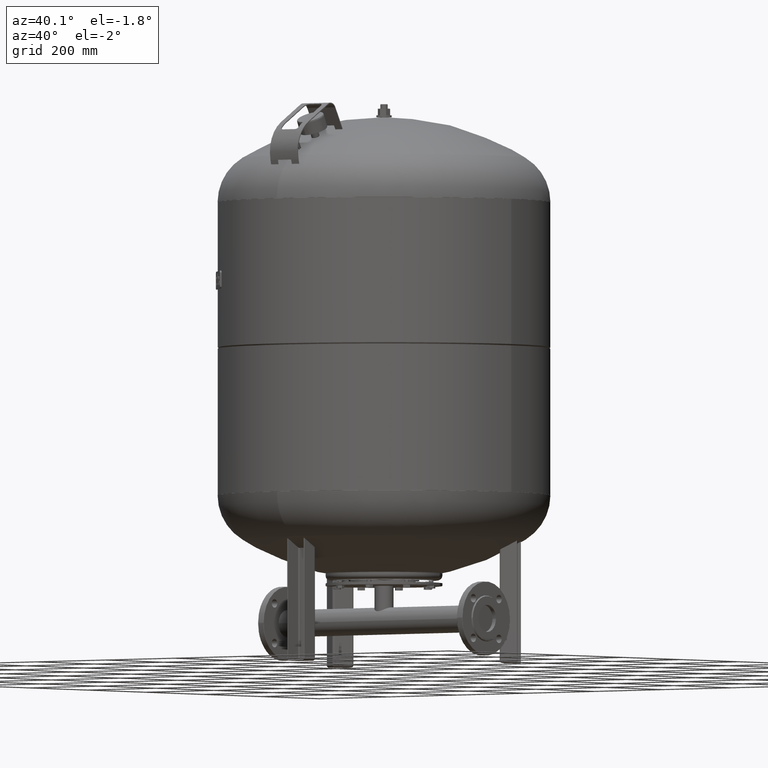
[diagram: clean part render]
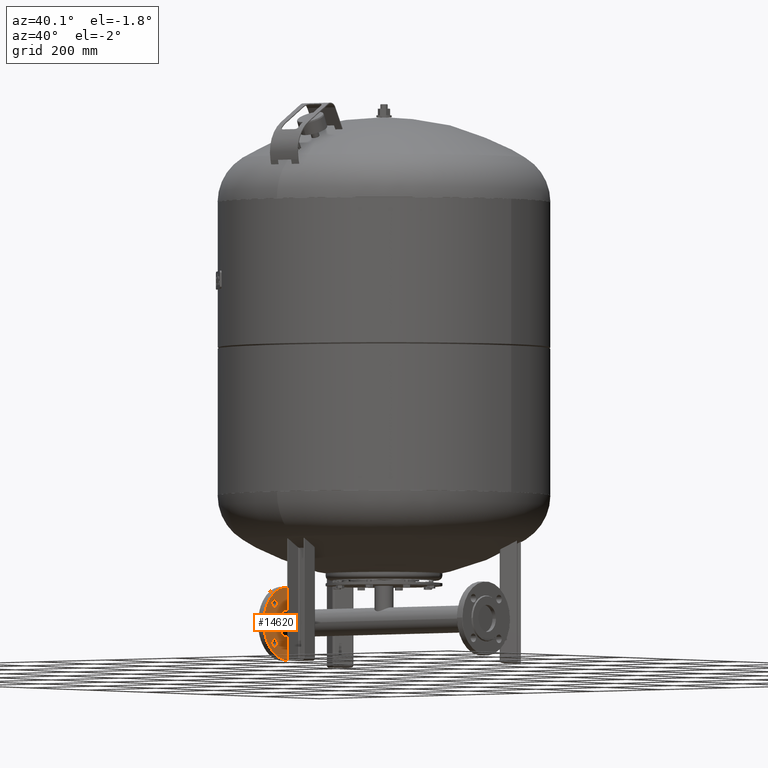
[diagram: same view with one face highlighted and labeled with its STEP entity id]
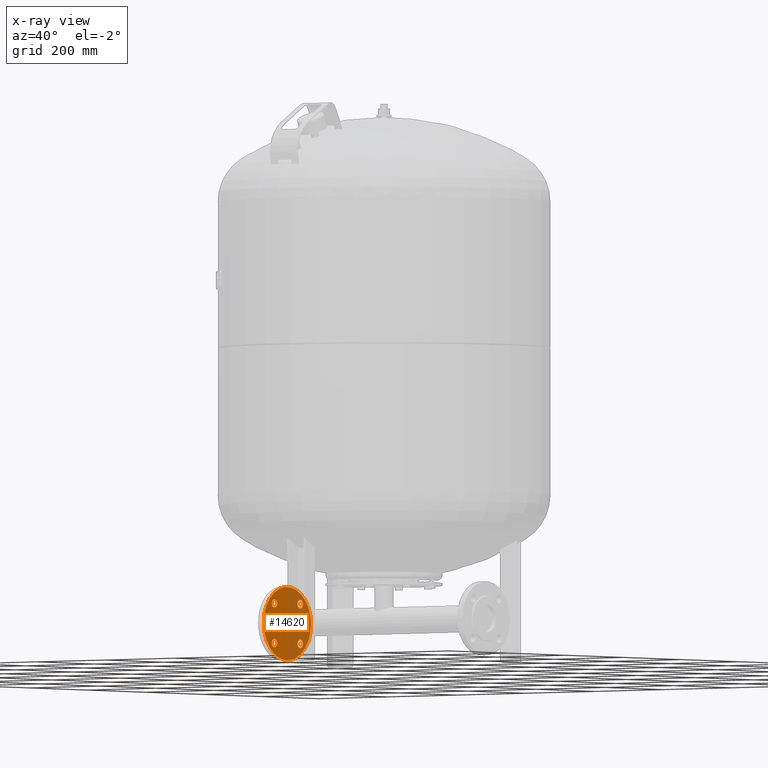
[diagram: x-ray of the same camera — body ghosted, the highlighted face saturated]
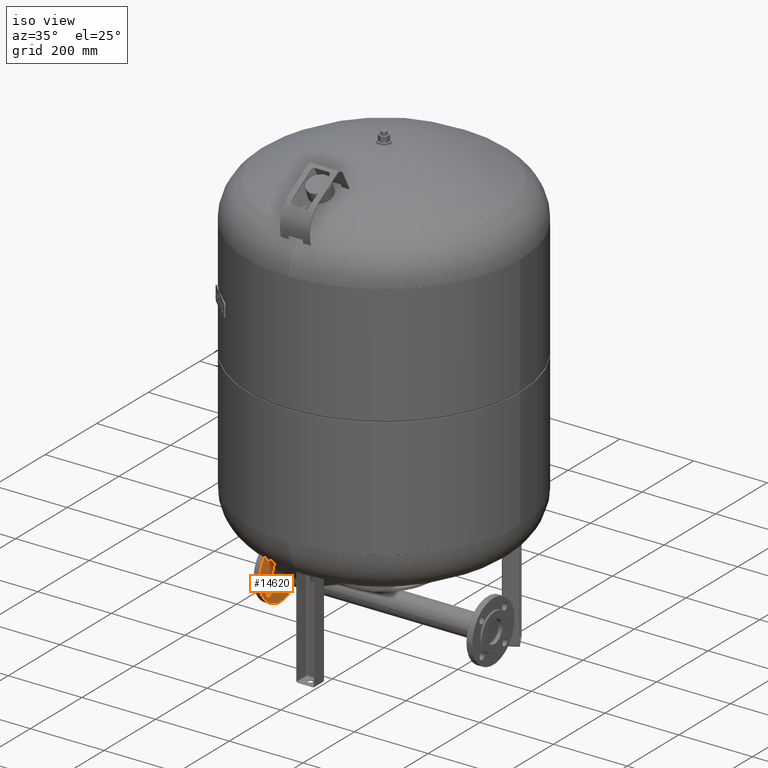
[diagram: same view with one face highlighted and labeled with its STEP entity id]
A machine part, auxiliary view. The second image highlights one B-rep face of the part: STEP entity #14620.
The next image is the same camera in x-ray: the body ghosted, the highlighted face saturated — about 50% of this face is hidden behind the body in this view.
A second angle (iso view) of the same face is appended — the face is thin or edge-on in the first view.
In plain terms, the highlighted face is a freeform B-spline surface patch.
Its self-contained STEP definition (entity closure, byte-faithful):
#13991=CARTESIAN_POINT('',(-281.0,-53.694173824159122,139.194173824159320));
#13992=VERTEX_POINT('',#13991);
#14001=CARTESIAN_POINT('',(-281.0,-34.694173824159122,139.194173824159320));
#14002=VERTEX_POINT('',#14001);
#14003=CARTESIAN_POINT('',(-281.0,-44.194173824159122,139.194173824159320));
#14004=DIRECTION('',(1.0,0.0,0.0));
#14005=DIRECTION('',(0.0,-1.0,0.0));
#14006=AXIS2_PLACEMENT_3D('',#14003,#14004,#14005);
#14007=CIRCLE('',#14006,9.500000000000000);
#14008=EDGE_CURVE('',#13992,#14002,#14007,.T.);
#14054=CARTESIAN_POINT('',(-281.0,-53.694173824159272,50.805826175840828));
#14055=VERTEX_POINT('',#14054);
#14064=CARTESIAN_POINT('',(-281.0,-34.694173824159272,50.805826175840828));
#14065=VERTEX_POINT('',#14064);
#14066=CARTESIAN_POINT('',(-281.0,-44.194173824159272,50.805826175840828));
#14067=DIRECTION('',(1.0,0.0,0.0));
#14068=DIRECTION('',(0.0,-1.0,0.0));
#14069=AXIS2_PLACEMENT_3D('',#14066,#14067,#14068);
#14070=CIRCLE('',#14069,9.500000000000000);
#14071=EDGE_CURVE('',#14055,#14065,#14070,.T.);
#14117=CARTESIAN_POINT('',(-281.0,34.694173824159158,50.805826175840714));
#14118=VERTEX_POINT('',#14117);
#14127=CARTESIAN_POINT('',(-281.0,53.694173824159158,50.805826175840714));
#14128=VERTEX_POINT('',#14127);
#14129=CARTESIAN_POINT('',(-281.0,44.194173824159158,50.805826175840714));
#14130=DIRECTION('',(1.0,0.0,0.0));
#14131=DIRECTION('',(0.0,-1.0,0.0));
#14132=AXIS2_PLACEMENT_3D('',#14129,#14130,#14131);
#14133=CIRCLE('',#14132,9.500000000000000);
#14134=EDGE_CURVE('',#14118,#14128,#14133,.T.);
#14180=CARTESIAN_POINT('',(-281.0,34.694173824159300,139.194173824159150));
#14181=VERTEX_POINT('',#14180);
#14190=CARTESIAN_POINT('',(-281.0,53.694173824159300,139.194173824159150));
#14191=VERTEX_POINT('',#14190);
#14192=CARTESIAN_POINT('',(-281.0,44.194173824159300,139.194173824159150));
#14193=DIRECTION('',(1.0,0.0,0.0));
#14194=DIRECTION('',(0.0,-1.0,0.0));
#14195=AXIS2_PLACEMENT_3D('',#14192,#14193,#14194);
#14196=CIRCLE('',#14195,9.500000000000000);
#14197=EDGE_CURVE('',#14181,#14191,#14196,.T.);
#14415=CARTESIAN_POINT('',(-281.0,-81.500000000000000,95.0));
#14416=VERTEX_POINT('',#14415);
#14425=CARTESIAN_POINT('',(-281.0,81.500000000000000,95.000000000000028));
#14426=VERTEX_POINT('',#14425);
#14434=CARTESIAN_POINT('',(-281.0,-3.490128E-015,95.0));
#14435=DIRECTION('',(1.0,0.0,0.0));
#14436=DIRECTION('',(0.0,1.0,0.0));
#14437=AXIS2_PLACEMENT_3D('',#14434,#14435,#14436);
#14438=CIRCLE('',#14437,81.500000000000000);
#14439=EDGE_CURVE('',#14416,#14426,#14438,.T.);
#14514=CARTESIAN_POINT('',(-281.0,-3.490128E-015,95.0));
#14515=DIRECTION('',(1.0,0.0,0.0));
#14516=DIRECTION('',(0.0,1.0,0.0));
#14517=AXIS2_PLACEMENT_3D('',#14514,#14515,#14516);
#14518=CIRCLE('',#14517,81.500000000000000);
#14519=EDGE_CURVE('',#14426,#14416,#14518,.T.);
#14571=CARTESIAN_POINT('',(-281.0,81.500000000000000,13.500000000000000));
#14572=CARTESIAN_POINT('',(-281.000000000000060,-81.500000000000000,13.500000000000000));
#14573=CARTESIAN_POINT('',(-281.000000000000060,81.500000000000000,176.500000000000000));
#14574=CARTESIAN_POINT('',(-281.000000000000110,-81.500000000000000,176.500000000000000));
#14575=B_SPLINE_SURFACE_WITH_KNOTS('',1,1,((#14571,#14573),(#14572,#14574)),.UNSPECIFIED.,.F.,.F.,.U.,(2,2),(2,2),(0.0,163.0),(0.0,163.0),.UNSPECIFIED.);
#14576=ORIENTED_EDGE('',*,*,#14439,.T.);
#14577=ORIENTED_EDGE('',*,*,#14519,.T.);
#14578=EDGE_LOOP('',(#14576,#14577));
#14579=FACE_OUTER_BOUND('',#14578,.T.);
#14580=ORIENTED_EDGE('',*,*,#14008,.F.);
#14581=CARTESIAN_POINT('',(-281.0,-44.194173824159122,139.194173824159320));
#14582=DIRECTION('',(1.0,0.0,0.0));
#14583=DIRECTION('',(0.0,-1.0,0.0));
#14584=AXIS2_PLACEMENT_3D('',#14581,#14582,#14583);
#14585=CIRCLE('',#14584,9.500000000000000);
#14586=EDGE_CURVE('',#14002,#13992,#14585,.T.);
#14587=ORIENTED_EDGE('',*,*,#14586,.F.);
#14588=EDGE_LOOP('',(#14580,#14587));
#14589=FACE_BOUND('',#14588,.T.);
#14590=ORIENTED_EDGE('',*,*,#14071,.F.);
#14591=CARTESIAN_POINT('',(-281.0,-44.194173824159272,50.805826175840828));
#14592=DIRECTION('',(1.0,0.0,0.0));
#14593=DIRECTION('',(0.0,-1.0,0.0));
#14594=AXIS2_PLACEMENT_3D('',#14591,#14592,#14593);
#14595=CIRCLE('',#14594,9.500000000000000);
#14596=EDGE_CURVE('',#14065,#14055,#14595,.T.);
#14597=ORIENTED_EDGE('',*,*,#14596,.F.);
#14598=EDGE_LOOP('',(#14590,#14597));
#14599=FACE_BOUND('',#14598,.T.);
#14600=ORIENTED_EDGE('',*,*,#14134,.F.);
#14601=CARTESIAN_POINT('',(-281.0,44.194173824159158,50.805826175840714));
#14602=DIRECTION('',(1.0,0.0,0.0));
#14603=DIRECTION('',(0.0,-1.0,0.0));
#14604=AXIS2_PLACEMENT_3D('',#14601,#14602,#14603);
#14605=CIRCLE('',#14604,9.500000000000000);
#14606=EDGE_CURVE('',#14128,#14118,#14605,.T.);
#14607=ORIENTED_EDGE('',*,*,#14606,.F.);
#14608=EDGE_LOOP('',(#14600,#14607));
#14609=FACE_BOUND('',#14608,.T.);
#14610=ORIENTED_EDGE('',*,*,#14197,.F.);
#14611=CARTESIAN_POINT('',(-281.0,44.194173824159300,139.194173824159150));
#14612=DIRECTION('',(1.0,0.0,0.0));
#14613=DIRECTION('',(0.0,-1.0,0.0));
#14614=AXIS2_PLACEMENT_3D('',#14611,#14612,#14613);
#14615=CIRCLE('',#14614,9.500000000000000);
#14616=EDGE_CURVE('',#14191,#14181,#14615,.T.);
#14617=ORIENTED_EDGE('',*,*,#14616,.F.);
#14618=EDGE_LOOP('',(#14610,#14617));
#14619=FACE_BOUND('',#14618,.T.);
#14620=ADVANCED_FACE('',(#14579,#14589,#14599,#14609,#14619),#14575,.F.);